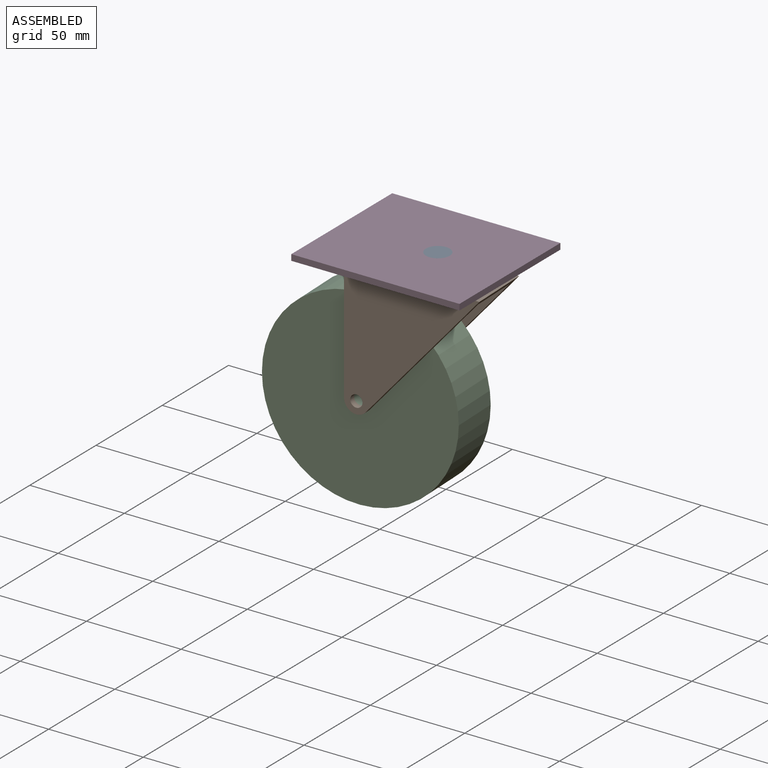
[diagram: assembled view]
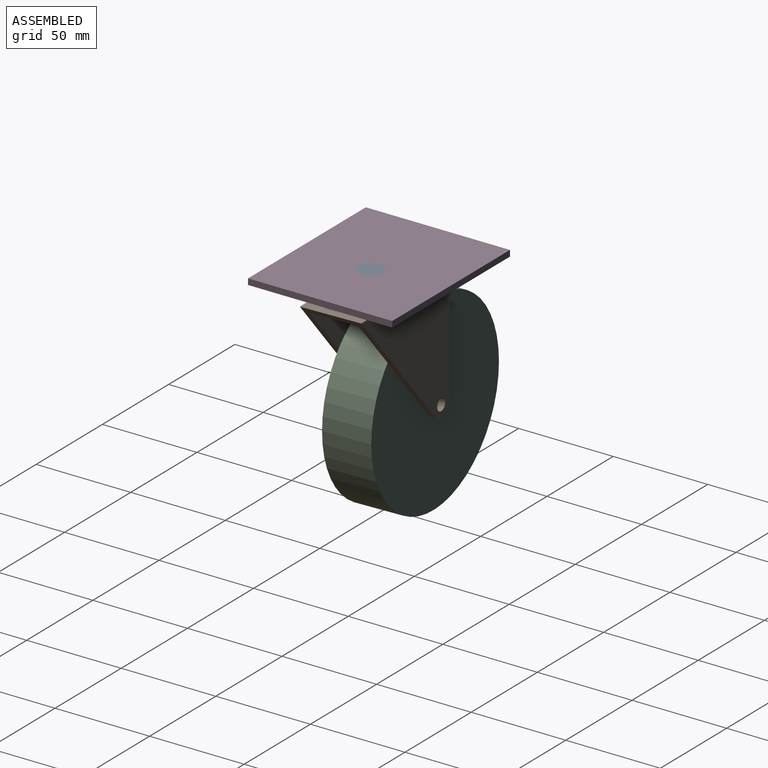
[diagram: assembled view, second angle]
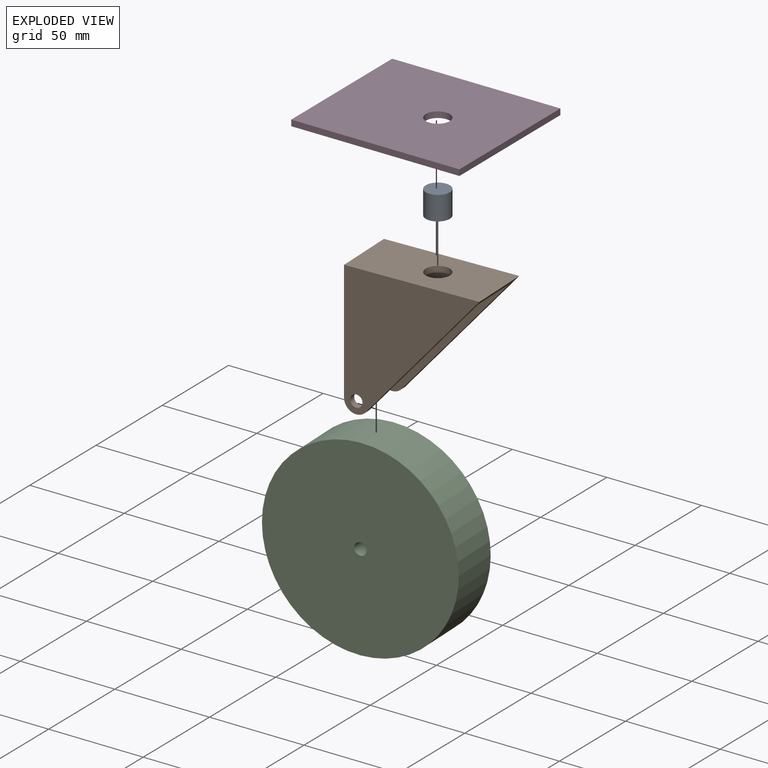
[diagram: exploded view]
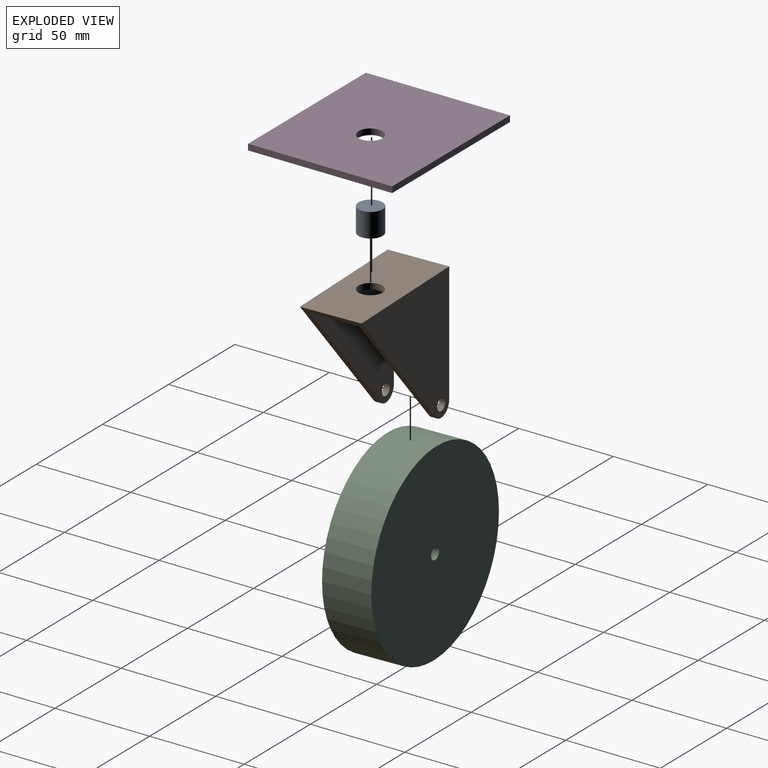
[diagram: exploded view, second angle]
ASSEMBLY  parts=4 mates=3
PART A: 3 faces, bbox 12.7x12.7x12.7 mm
  f0: cylinder r=6.35mm len=12.7mm, axis (0,0,-1), area 506.7mm2, adj f1,f2
  f1: plane 12.7x12.7mm, normal (0,0,1), area 126.7mm2, adj f0
  f2: plane 12.7x12.7mm, normal (0,0,-1), area 126.7mm2, adj f0
PART B: 13 faces, bbox 69.9x31.8x69.9 mm
  f0: plane 67.66x58.7mm, normal (0.76,0,-0.66), area 675.6mm2, adj f1,f3,f4,f5,f6,f7,f8,f9
  f1: cylinder r=6.35mm len=11.15mm, axis (0,1,0), area 48.9mm2, adj f0,f2,f6,f9
  f2: plane 63.5x31.75mm, normal (-1,0,0), area 483.9mm2, adj f1,f3,f4,f5,f6,f7,f8,f9
  f3: plane 69.85x31.75mm, normal (0,0,1), area 2091.1mm2, adj f0,f2,f5,f6,f12
  f4: cylinder r=6.35mm len=11.15mm, axis (0,1,0), area 48.9mm2, adj f0,f2,f5,f8
  f5: plane 69.85x69.85mm, normal (0,-1,0), area 2721mm2, adj f0,f2,f3,f4,f11
  f6: plane 69.85x69.85mm, normal (0,1,0), area 2721mm2, adj f0,f1,f2,f3,f10
  f7: plane 67.1x25.4mm, normal (0,0,-1), area 1577.5mm2, adj f0,f2,f8,f9,f12
  f8: plane 67.1x66.68mm, normal (0,1,0), area 2503.6mm2, adj f0,f2,f4,f7,f11
  f9: plane 67.1x66.68mm, normal (0,-1,0), area 2503.6mm2, adj f0,f1,f2,f7,f10
  f10: cylinder r=3.17mm len=6.35mm, axis (0,-1,0), area 63.3mm2, adj f6,f9
  f11: cylinder r=3.17mm len=6.35mm, axis (0,-1,0), area 63.3mm2, adj f5,f8
  f12: cylinder r=6.35mm len=12.7mm, axis (0,0,1), area 126.7mm2, adj f3,f7
PART C: 4 faces, bbox 101.6x25.4x101.6 mm
  f0: cylinder r=50.8mm len=101.6mm, axis (0,1,0), area 8107.3mm2, adj f1,f2
  f1: plane 101.6x101.6mm, normal (0,-1,0), area 8075.7mm2, adj f0,f3
  f2: plane 101.6x101.6mm, normal (0,1,0), area 8075.7mm2, adj f0,f3
  f3: cylinder r=3.17mm len=25.4mm, axis (0,-1,0), area 506.7mm2, adj f1,f2
PART D: 7 faces, bbox 88.9x76.2x3.2 mm
  f0: plane 76.2x3.18mm, normal (1,0,0), area 241.9mm2, adj f1,f3,f4,f5
  f1: plane 88.9x3.18mm, normal (0,1,0), area 282.3mm2, adj f0,f2,f4,f5
  f2: plane 76.2x3.18mm, normal (-1,0,0), area 241.9mm2, adj f1,f3,f4,f5
  f3: plane 88.9x3.18mm, normal (0,-1,0), area 282.3mm2, adj f0,f2,f4,f5
  f4: plane 88.9x76.2mm, normal (0,0,1), area 6647.5mm2, adj f0,f1,f2,f3,f6
  f5: plane 88.9x76.2mm, normal (0,0,-1), area 6647.5mm2, adj f0,f1,f2,f3,f6
  f6: cylinder r=6.35mm len=12.7mm, axis (0,0,1), area 126.7mm2, adj f4,f5
PLACE A rot(axis=(0,0,-1),146.1deg) t=(1.97,-1.78,-10)mm
PLACE B rot(axis=(0,0,1),2deg) t=(-36.1,-3.13,-87.33)mm
PLACE C rot(axis=(0,0,1),2deg) t=(-29.76,-2.91,-70.32)mm
PLACE D t=(-4.38,-1.78,-0.47)mm fixed
MATE cylindrical D.f6 <-> A.f0  axis (0,0,1) through (1.97,-1.78,2.7)mm
MATE cylindrical B.f12 <-> A.f0  axis (0,0,-1) through (1.97,-1.78,-10)mm
MATE cylindrical C.f0 <-> B.f1  axis (0.04,-1,0) through (-29.31,-15.6,-70.32)mm
